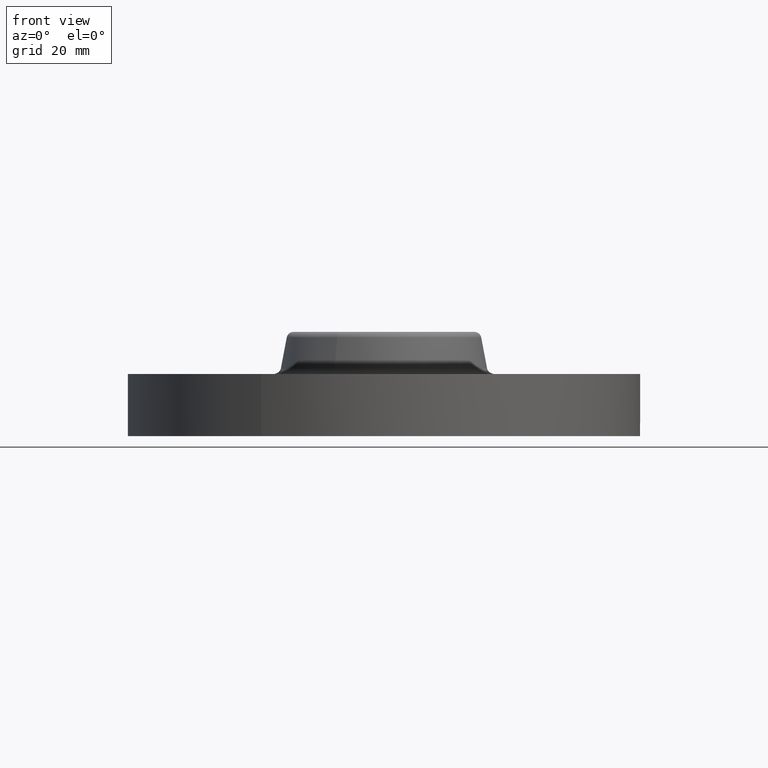
[diagram: clean part render]
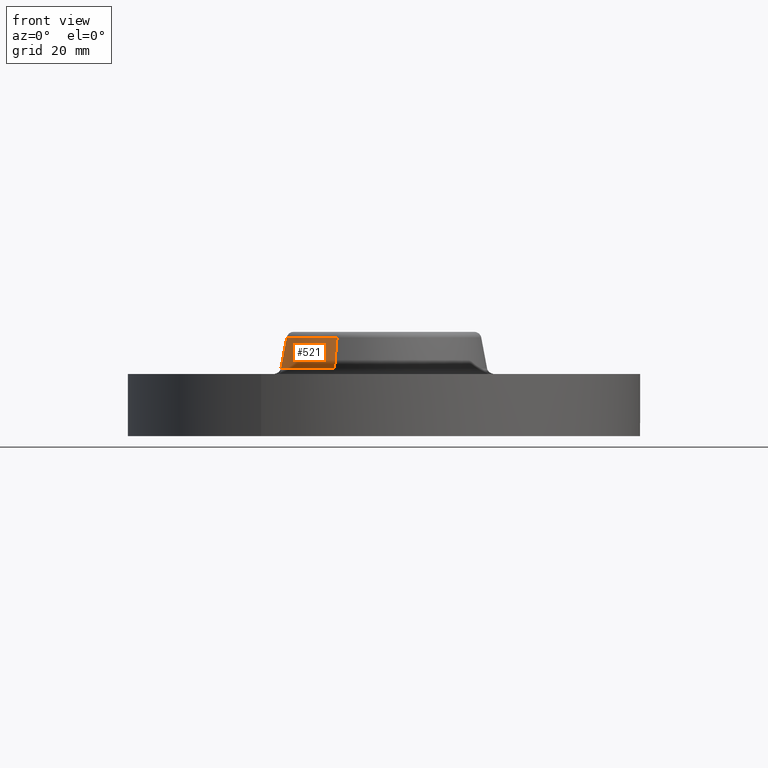
[diagram: same view with one face highlighted and labeled with its STEP entity id]
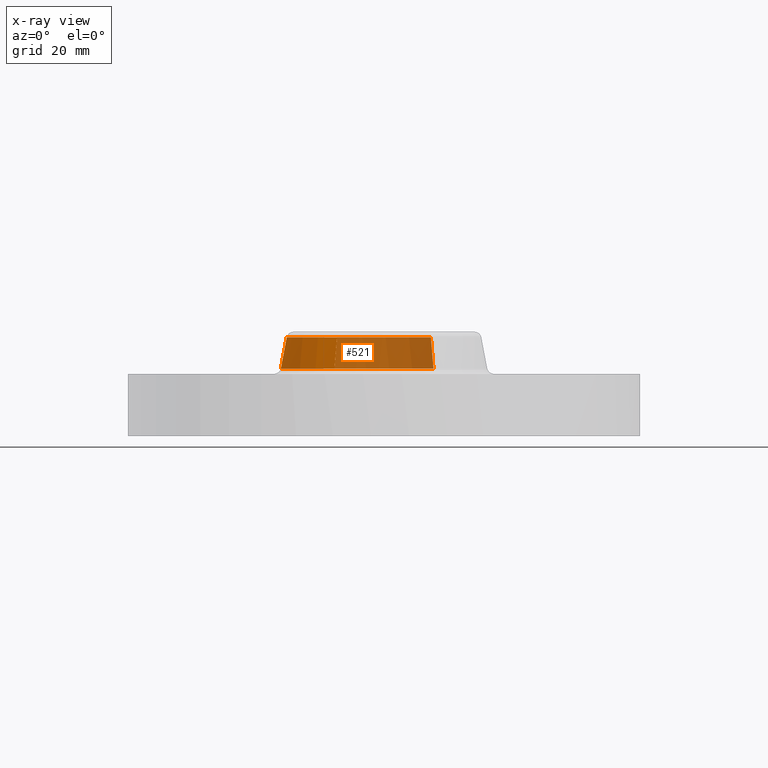
[diagram: x-ray of the same camera — body ghosted, the highlighted face saturated]
A machine part, front view. The second image highlights one B-rep face of the part: STEP entity #521.
The next image is the same camera in x-ray: the body ghosted, the highlighted face saturated — about 65% of this face is hidden behind the body in this view.
In plain terms, the highlighted conical surface has half-angle 10 deg.
Its self-contained STEP definition (entity closure, byte-faithful):
#348=AXIS2_PLACEMENT_3D('Circle Axis2P3D',#346,#347,$) ;
#508=AXIS2_PLACEMENT_3D('Cone Axis2P3D',#505,#506,#507) ;
#512=AXIS2_PLACEMENT_3D('Circle Axis2P3D',#510,#511,$) ;
#312=CARTESIAN_POINT('Vertex',(0.422727828052,0.773798098875,0.890418890664)) ;
#314=CARTESIAN_POINT('Vertex',(-0.422727828052,-0.773798098876,0.890418890664)) ;
#346=CARTESIAN_POINT('Axis2P3D Location',(0.,0.,0.890418890664)) ;
#476=CARTESIAN_POINT('Vertex',(0.446468634603,0.81725535377,0.609581109342)) ;
#478=CARTESIAN_POINT('Vertex',(-0.446468634603,-0.81725535377,0.609581109342)) ;
#481=CARTESIAN_POINT('Line Origine',(0.434598231328,0.795526726322,0.750000000002)) ;
#486=CARTESIAN_POINT('Line Origine',(-0.434598231328,-0.795526726322,0.750000000002)) ;
#505=CARTESIAN_POINT('Axis2P3D Location',(0.,0.,0.890418890664)) ;
#510=CARTESIAN_POINT('Axis2P3D Location',(0.,0.,0.609581109342)) ;
#347=DIRECTION('Axis2P3D Direction',(-0.,0.,-0.0393700787402)) ;
#482=DIRECTION('Vector Direction',(0.00327761303565,0.00599963041827,-0.03877195878)) ;
#487=DIRECTION('Vector Direction',(-0.00327761303565,-0.00599963041827,-0.03877195878)) ;
#506=DIRECTION('Axis2P3D Direction',(0.,0.,-0.0393700787402)) ;
#507=DIRECTION('Axis2P3D XDirection',(-0.0188750212049,-0.0345504945626,0.)) ;
#511=DIRECTION('Axis2P3D Direction',(-0.,0.,-0.0393700787402)) ;
#483=VECTOR('Line Direction',#482,0.0393700787402) ;
#488=VECTOR('Line Direction',#487,0.0393700787402) ;
#516=ORIENTED_EDGE('',*,*,#514,.F.) ;
#517=ORIENTED_EDGE('',*,*,#490,.T.) ;
#518=ORIENTED_EDGE('',*,*,#350,.T.) ;
#519=ORIENTED_EDGE('',*,*,#485,.F.) ;
#521=ADVANCED_FACE('PartBody',(#520),#509,.T.) ;
#349=CIRCLE('generated circle',#348,0.881738234644) ;
#513=CIRCLE('generated circle',#512,0.931257512693) ;
#509=CONICAL_SURFACE('Cone',#508,0.881738234644,0.174532925199) ;
#350=EDGE_CURVE('',#315,#313,#349,.T.) ;
#485=EDGE_CURVE('',#477,#313,#484,.F.) ;
#490=EDGE_CURVE('',#479,#315,#489,.F.) ;
#514=EDGE_CURVE('',#479,#477,#513,.T.) ;
#515=EDGE_LOOP('',(#516,#517,#518,#519)) ;
#520=FACE_OUTER_BOUND('',#515,.T.) ;
#484=LINE('Line',#481,#483) ;
#489=LINE('Line',#486,#488) ;
#313=VERTEX_POINT('',#312) ;
#315=VERTEX_POINT('',#314) ;
#477=VERTEX_POINT('',#476) ;
#479=VERTEX_POINT('',#478) ;